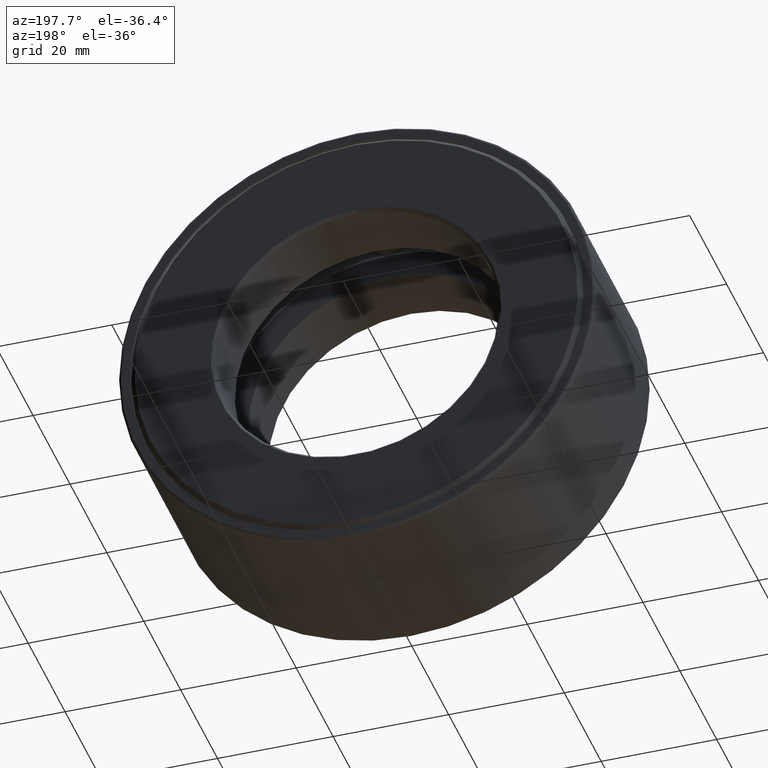
[diagram: clean part render]
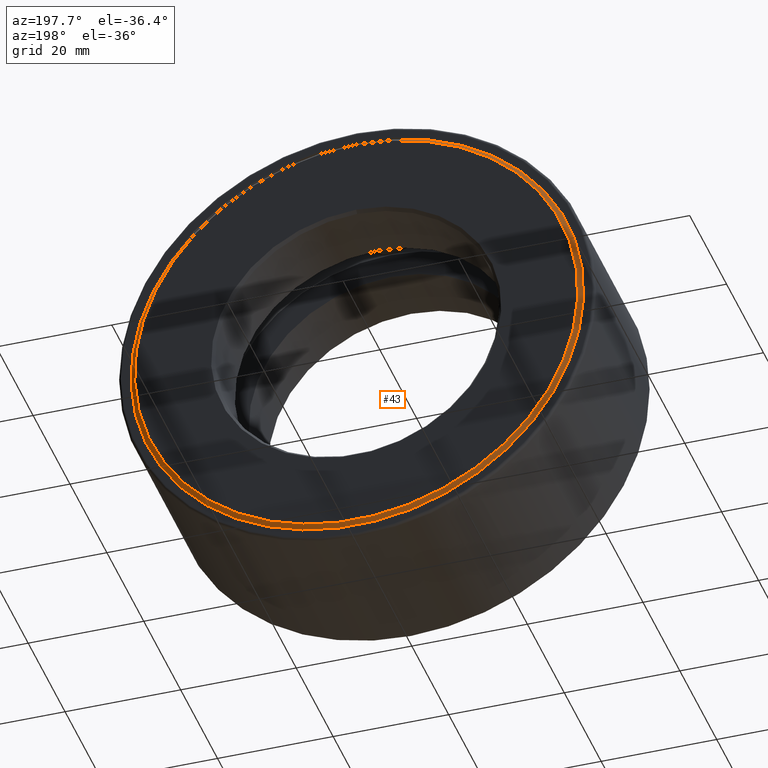
[diagram: same view with one face highlighted and labeled with its STEP entity id]
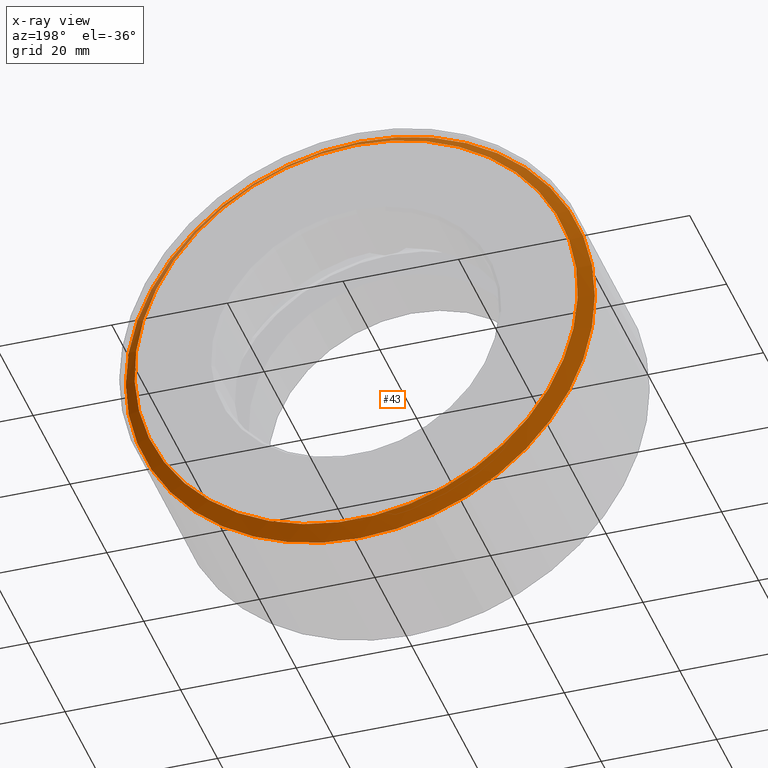
[diagram: x-ray of the same camera — body ghosted, the highlighted face saturated]
A machine part, auxiliary view. The second image highlights one B-rep face of the part: STEP entity #43.
The next image is the same camera in x-ray: the body ghosted, the highlighted face saturated — about 0% of this face is hidden behind the body in this view.
In plain terms, the highlighted conical surface has half-angle 45 deg.
Its self-contained STEP definition (entity closure, byte-faithful):
#43 = ADVANCED_FACE ( 'NONE', ( #237, #66 ), #160, .T. ) ;
#44 = CARTESIAN_POINT ( 'NONE',  ( 0.0000000000000000000, 1.187500000000000000, 1.509999999999999800 ) ) ;
#47 = CARTESIAN_POINT ( 'NONE',  ( 0.0000000000000000000, 1.099499999999999900, 1.598000000000000100 ) ) ;
#66 = FACE_BOUND ( 'NONE', #420, .T. ) ;
#82 = EDGE_CURVE ( 'NONE', #589, #589, #383, .T. ) ;
#108 = AXIS2_PLACEMENT_3D ( 'NONE', #186, #188, #167 ) ;
#160 = CONICAL_SURFACE ( 'NONE', #189, 1.509999999999999800, 0.7853981633974490600 ) ;
#166 = DIRECTION ( 'NONE',  ( -0.0000000000000000000, 1.000000000000000000, -0.0000000000000000000 ) ) ;
#167 = DIRECTION ( 'NONE',  ( 0.0000000000000000000, 0.0000000000000000000, 1.000000000000000000 ) ) ;
#176 = CARTESIAN_POINT ( 'NONE',  ( 0.0000000000000000000, 1.187500000000000000, 0.0000000000000000000 ) ) ;
#178 = DIRECTION ( 'NONE',  ( 0.0000000000000000000, 0.0000000000000000000, -1.000000000000000000 ) ) ;
#186 = CARTESIAN_POINT ( 'NONE',  ( 0.0000000000000000000, 1.099499999999999900, 0.0000000000000000000 ) ) ;
#188 = DIRECTION ( 'NONE',  ( -0.0000000000000000000, 1.000000000000000000, -0.0000000000000000000 ) ) ;
#189 = AXIS2_PLACEMENT_3D ( 'NONE', #461, #552, #178 ) ;
#218 = EDGE_LOOP ( 'NONE', ( #395 ) ) ;
#237 = FACE_OUTER_BOUND ( 'NONE', #218, .T. ) ;
#255 = CIRCLE ( 'NONE', #413, 1.509999999999999800 ) ;
#356 = ORIENTED_EDGE ( 'NONE', *, *, #488, .F. ) ;
#357 = DIRECTION ( 'NONE',  ( 0.0000000000000000000, 0.0000000000000000000, 1.000000000000000000 ) ) ;
#383 = CIRCLE ( 'NONE', #108, 1.598000000000000100 ) ;
#395 = ORIENTED_EDGE ( 'NONE', *, *, #82, .T. ) ;
#413 = AXIS2_PLACEMENT_3D ( 'NONE', #176, #166, #357 ) ;
#420 = EDGE_LOOP ( 'NONE', ( #356 ) ) ;
#460 = VERTEX_POINT ( 'NONE', #44 ) ;
#461 = CARTESIAN_POINT ( 'NONE',  ( 0.0000000000000000000, 1.187500000000000000, 0.0000000000000000000 ) ) ;
#488 = EDGE_CURVE ( 'NONE', #460, #460, #255, .T. ) ;
#552 = DIRECTION ( 'NONE',  ( 0.0000000000000000000, -1.000000000000000000, 0.0000000000000000000 ) ) ;
#589 = VERTEX_POINT ( 'NONE', #47 ) ;